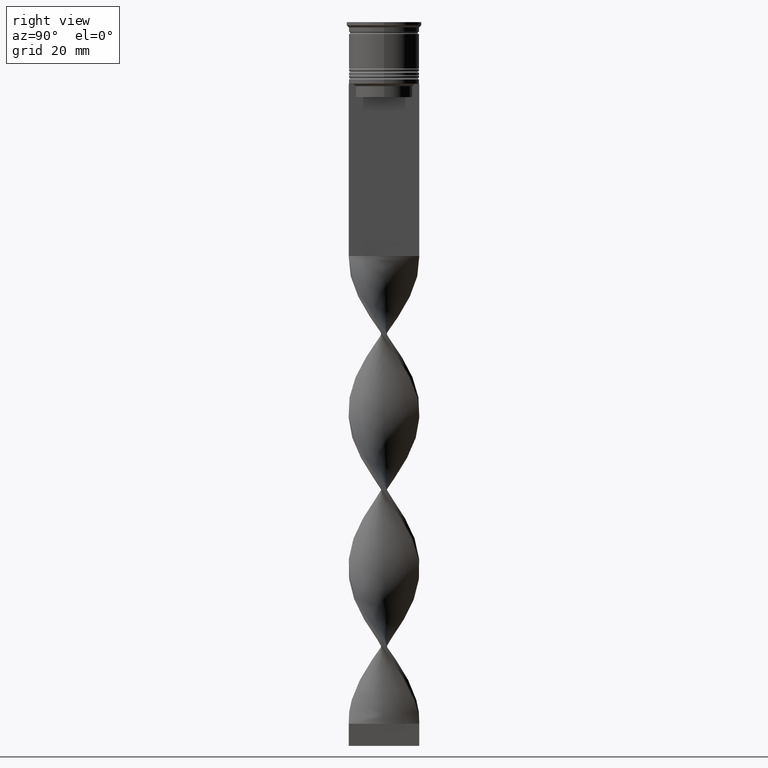
[diagram: clean part render]
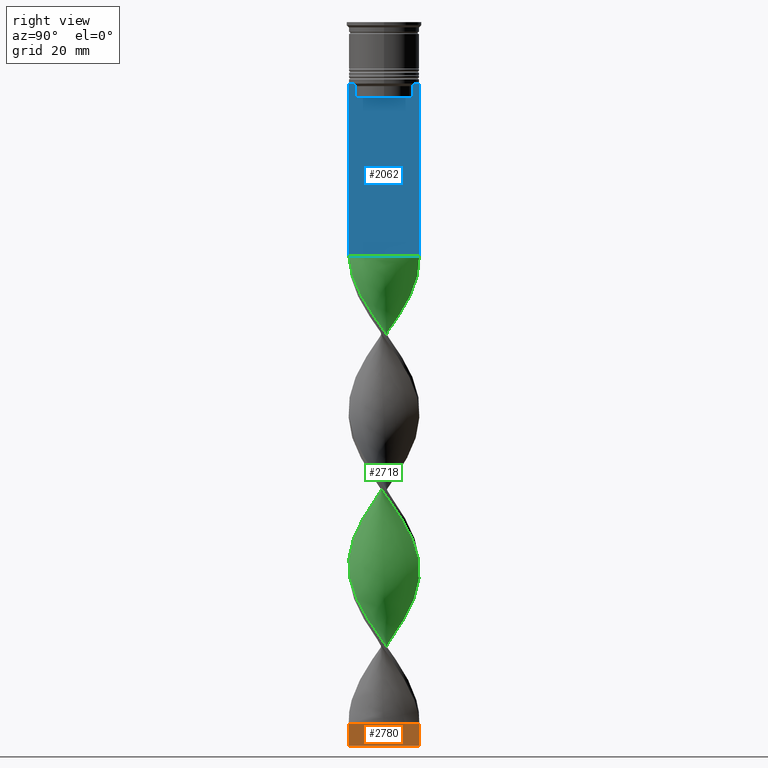
[diagram: same view with three faces highlighted in distinct colors, each labeled with its STEP entity id]
A machine part, right view with three faces highlighted in distinct colors.
Their STEP definitions:

[orange] entity #2780 — the highlighted planar face has unit normal (-1, 0, 0).
#74 = VERTEX_POINT ( 'NONE', #1601 ) ;
#82 = PLANE ( 'NONE',  #1671 ) ;
#130 = ORIENTED_EDGE ( 'NONE', *, *, #1564, .T. ) ;
#194 = ORIENTED_EDGE ( 'NONE', *, *, #2285, .F. ) ;
#341 = ORIENTED_EDGE ( 'NONE', *, *, #2772, .F. ) ;
#364 = DIRECTION ( 'NONE',  ( -1.219727444046192488E-16, -1.000000000000000000, 0.000000000000000000 ) ) ;
#442 = VECTOR ( 'NONE', #2207, 1000.000000000000000 ) ;
#530 = EDGE_LOOP ( 'NONE', ( #1294, #194, #341, #130 ) ) ;
#594 = CARTESIAN_POINT ( 'NONE',  ( 0.4999999999999989453, -7.999999999999996447, -159.0000000000000000 ) ) ;
#726 = CARTESIAN_POINT ( 'NONE',  ( 0.4999999999999989453, -7.999999999999996447, -164.0000000000000000 ) ) ;
#1136 = LINE ( 'NONE', #1792, #2102 ) ;
#1210 = DIRECTION ( 'NONE',  ( -0.000000000000000000, -0.000000000000000000, 1.000000000000000000 ) ) ;
#1294 = ORIENTED_EDGE ( 'NONE', *, *, #3316, .T. ) ;
#1388 = LINE ( 'NONE', #3693, #442 ) ;
#1389 = CARTESIAN_POINT ( 'NONE',  ( 0.5000000000000008882, 8.000000000000003553, -159.0000000000000000 ) ) ;
#1510 = CARTESIAN_POINT ( 'NONE',  ( 0.5000000000000008882, 8.000000000000003553, -164.0000000000000000 ) ) ;
#1540 = B_SPLINE_CURVE_WITH_KNOTS ( 'NONE', 3,
 ( #1389, #3161, #3181, #594 ),
 .UNSPECIFIED., .F., .F.,
 ( 4, 4 ),
 ( 0.000000000000000000, 1.000000000000000000 ),
 .UNSPECIFIED. ) ;
#1564 = EDGE_CURVE ( 'NONE', #2221, #74, #1388, .T. ) ;
#1601 = CARTESIAN_POINT ( 'NONE',  ( 0.5000000000000008882, 8.000000000000003553, -159.0000000000000000 ) ) ;
#1637 = VERTEX_POINT ( 'NONE', #3394 ) ;
#1671 = AXIS2_PLACEMENT_3D ( 'NONE', #3606, #1874, #364 ) ;
#1792 = CARTESIAN_POINT ( 'NONE',  ( 0.4999999999999989453, -7.999999999999996447, -164.0000000000000000 ) ) ;
#1874 = DIRECTION ( 'NONE',  ( -1.000000000000000000, 1.219727444046192488E-16, 0.000000000000000000 ) ) ;
#2102 = VECTOR ( 'NONE', #1210, 1000.000000000000000 ) ;
#2207 = DIRECTION ( 'NONE',  ( -0.000000000000000000, -0.000000000000000000, 1.000000000000000000 ) ) ;
#2221 = VERTEX_POINT ( 'NONE', #3726 ) ;
#2285 = EDGE_CURVE ( 'NONE', #3018, #1637, #1136, .T. ) ;
#2772 = EDGE_CURVE ( 'NONE', #2221, #3018, #3304, .T. ) ;
#2780 = ADVANCED_FACE ( 'NONE', ( #2999 ), #82, .F. ) ;
#2999 = FACE_OUTER_BOUND ( 'NONE', #530, .T. ) ;
#3018 = VERTEX_POINT ( 'NONE', #726 ) ;
#3161 = CARTESIAN_POINT ( 'NONE',  ( 0.5000000000000002220, 2.666666666666670515, -159.0000000000000000 ) ) ;
#3181 = CARTESIAN_POINT ( 'NONE',  ( 0.4999999999999995559, -2.666666666666663410, -159.0000000000000000 ) ) ;
#3283 = DIRECTION ( 'NONE',  ( -1.219727444046192488E-16, -1.000000000000000000, 0.000000000000000000 ) ) ;
#3304 = LINE ( 'NONE', #1510, #3323 ) ;
#3316 = EDGE_CURVE ( 'NONE', #74, #1637, #1540, .T. ) ;
#3323 = VECTOR ( 'NONE', #3283, 1000.000000000000000 ) ;
#3394 = CARTESIAN_POINT ( 'NONE',  ( 0.4999999999999989453, -7.999999999999996447, -159.0000000000000000 ) ) ;
#3606 = CARTESIAN_POINT ( 'NONE',  ( 0.5000000000000008882, 8.000000000000003553, -164.0000000000000000 ) ) ;
#3693 = CARTESIAN_POINT ( 'NONE',  ( 0.5000000000000008882, 8.000000000000003553, -164.0000000000000000 ) ) ;
#3726 = CARTESIAN_POINT ( 'NONE',  ( 0.5000000000000008882, 8.000000000000003553, -164.0000000000000000 ) ) ;

[blue] entity #2062 — the highlighted planar face has unit normal (-1, 0, 0).
#8 = CARTESIAN_POINT ( 'NONE',  ( 0.5000000000000001110, -6.881860213634098500, -14.00000000000000178 ) ) ;
#18 = CARTESIAN_POINT ( 'NONE',  ( 0.5000000000000001110, 6.881860213634098500, -14.00000000000000178 ) ) ;
#34 = CARTESIAN_POINT ( 'NONE',  ( 0.5000000000000001110, 6.380438856379708312, -14.50000000000000000 ) ) ;
#38 = EDGE_CURVE ( 'NONE', #3427, #2459, #3504, .T. ) ;
#67 = EDGE_CURVE ( 'NONE', #2589, #3427, #1018, .T. ) ;
#149 = VECTOR ( 'NONE', #1257, 1000.000000000000000 ) ;
#189 = VECTOR ( 'NONE', #1235, 1000.000000000000000 ) ;
#227 = VERTEX_POINT ( 'NONE', #951 ) ;
#328 = VECTOR ( 'NONE', #2344, 1000.000000000000000 ) ;
#332 = VECTOR ( 'NONE', #2652, 1000.000000000000000 ) ;
#335 = VERTEX_POINT ( 'NONE', #2974 ) ;
#354 = LINE ( 'NONE', #2681, #149 ) ;
#412 = CARTESIAN_POINT ( 'NONE',  ( 0.5000000000000001110, -8.000000000000003553, 2.031219541881394530 ) ) ;
#416 = CARTESIAN_POINT ( 'NONE',  ( 0.5000000000000001110, 6.380438856379708312, -14.50000000000000000 ) ) ;
#433 = DIRECTION ( 'NONE',  ( 0.000000000000000000, 0.000000000000000000, -1.000000000000000000 ) ) ;
#456 = B_SPLINE_CURVE_WITH_KNOTS ( 'NONE', 3,
 ( #829, #2335, #3226, #8 ),
 .UNSPECIFIED., .F., .F.,
 ( 4, 4 ),
 ( 0.02996184199614751464, 0.03067452609193705923 ),
 .UNSPECIFIED. ) ;
#501 = VERTEX_POINT ( 'NONE', #3418 ) ;
#566 = CARTESIAN_POINT ( 'NONE',  ( 0.5000000000000001110, 6.399999999999999467, -17.00000000000000000 ) ) ;
#728 = CARTESIAN_POINT ( 'NONE',  ( 0.5000000000000001110, -8.000000000000003553, 2.031219541881394530 ) ) ;
#729 = ORIENTED_EDGE ( 'NONE', *, *, #1634, .T. ) ;
#780 = VERTEX_POINT ( 'NONE', #1206 ) ;
#829 = CARTESIAN_POINT ( 'NONE',  ( 0.5000000000000001110, -6.380438856379708312, -14.50000000000000000 ) ) ;
#839 = LINE ( 'NONE', #1761, #2442 ) ;
#895 = EDGE_CURVE ( 'NONE', #2841, #335, #354, .T. ) ;
#951 = CARTESIAN_POINT ( 'NONE',  ( 0.5000000000000001110, -6.380438856379708312, -17.00000000000000000 ) ) ;
#955 = CARTESIAN_POINT ( 'NONE',  ( 0.5000000000000001110, 7.999999999999996447, 2.031219541881394530 ) ) ;
#975 = CARTESIAN_POINT ( 'NONE',  ( 0.5000000000000001110, -8.000000000000003553, -14.00000000000000178 ) ) ;
#979 = ORIENTED_EDGE ( 'NONE', *, *, #2970, .F. ) ;
#1006 = DIRECTION ( 'NONE',  ( 0.000000000000000000, -1.000000000000000000, 0.000000000000000000 ) ) ;
#1016 = LINE ( 'NONE', #975, #3426 ) ;
#1018 = LINE ( 'NONE', #728, #1424 ) ;
#1026 = DIRECTION ( 'NONE',  ( -1.000000000000000000, 0.000000000000000000, 0.000000000000000000 ) ) ;
#1051 = VERTEX_POINT ( 'NONE', #2056 ) ;
#1131 = CARTESIAN_POINT ( 'NONE',  ( 0.5000000000000001110, -8.000000000000003553, -14.00000000000000178 ) ) ;
#1206 = CARTESIAN_POINT ( 'NONE',  ( 0.5000000000000001110, 6.380438856379708312, -17.00000000000000000 ) ) ;
#1235 = DIRECTION ( 'NONE',  ( 0.000000000000000000, 0.000000000000000000, -1.000000000000000000 ) ) ;
#1237 = ORIENTED_EDGE ( 'NONE', *, *, #2520, .T. ) ;
#1257 = DIRECTION ( 'NONE',  ( 0.000000000000000000, -1.000000000000000000, 0.000000000000000000 ) ) ;
#1407 = DIRECTION ( 'NONE',  ( 0.000000000000000000, -1.000000000000000000, 0.000000000000000000 ) ) ;
#1424 = VECTOR ( 'NONE', #433, 1000.000000000000000 ) ;
#1453 = CARTESIAN_POINT ( 'NONE',  ( 0.5000000000000001110, -8.000000000000003553, -53.00000000000000000 ) ) ;
#1470 = EDGE_CURVE ( 'NONE', #335, #2589, #1016, .T. ) ;
#1490 = LINE ( 'NONE', #955, #332 ) ;
#1500 = CARTESIAN_POINT ( 'NONE',  ( 0.5000000000000001110, 7.999999999999996447, -53.00000000000000000 ) ) ;
#1529 = CARTESIAN_POINT ( 'NONE',  ( 0.5000000000000001110, -6.881860213634098500, -14.00000000000000178 ) ) ;
#1634 = EDGE_CURVE ( 'NONE', #1051, #1897, #1701, .T. ) ;
#1652 = VERTEX_POINT ( 'NONE', #2288 ) ;
#1695 = ORIENTED_EDGE ( 'NONE', *, *, #2632, .T. ) ;
#1699 = ORIENTED_EDGE ( 'NONE', *, *, #3391, .T. ) ;
#1701 = LINE ( 'NONE', #3455, #3611 ) ;
#1761 = CARTESIAN_POINT ( 'NONE',  ( 0.5000000000000001110, -6.380438856379708312, 0.000000000000000000 ) ) ;
#1833 = ORIENTED_EDGE ( 'NONE', *, *, #38, .T. ) ;
#1897 = VERTEX_POINT ( 'NONE', #3277 ) ;
#1970 = VECTOR ( 'NONE', #2696, 1000.000000000000000 ) ;
#2051 = ORIENTED_EDGE ( 'NONE', *, *, #3434, .T. ) ;
#2056 = CARTESIAN_POINT ( 'NONE',  ( 0.5000000000000001110, 7.884161337770806632, -14.00000000000000178 ) ) ;
#2062 = ADVANCED_FACE ( 'NONE', ( #3031 ), #2455, .F. ) ;
#2101 = CARTESIAN_POINT ( 'NONE',  ( 0.5000000000000001110, 6.380438856379708312, 0.000000000000000000 ) ) ;
#2276 = VECTOR ( 'NONE', #1006, 1000.000000000000000 ) ;
#2288 = CARTESIAN_POINT ( 'NONE',  ( 0.5000000000000001110, -6.380438856379708312, -14.50000000000000000 ) ) ;
#2333 = EDGE_CURVE ( 'NONE', #780, #227, #2359, .T. ) ;
#2335 = CARTESIAN_POINT ( 'NONE',  ( 0.5000000000000001110, -6.547597841511247019, -14.33335192438652150 ) ) ;
#2344 = DIRECTION ( 'NONE',  ( 0.000000000000000000, -1.000000000000000000, 0.000000000000000000 ) ) ;
#2359 = LINE ( 'NONE', #566, #328 ) ;
#2429 = ORIENTED_EDGE ( 'NONE', *, *, #3270, .T. ) ;
#2441 = CARTESIAN_POINT ( 'NONE',  ( 0.5000000000000001110, -8.000000000000003553, -53.00000000000000000 ) ) ;
#2442 = VECTOR ( 'NONE', #3488, 1000.000000000000000 ) ;
#2455 = PLANE ( 'NONE',  #2761 ) ;
#2459 = VERTEX_POINT ( 'NONE', #1500 ) ;
#2520 = EDGE_CURVE ( 'NONE', #501, #1051, #2699, .T. ) ;
#2589 = VERTEX_POINT ( 'NONE', #1131 ) ;
#2628 = CARTESIAN_POINT ( 'NONE',  ( 0.5000000000000001110, 6.714736947114692711, -14.16668390704818847 ) ) ;
#2632 = EDGE_CURVE ( 'NONE', #1652, #2841, #456, .T. ) ;
#2652 = DIRECTION ( 'NONE',  ( 0.000000000000000000, 0.000000000000000000, -1.000000000000000000 ) ) ;
#2681 = CARTESIAN_POINT ( 'NONE',  ( 0.5000000000000001110, -8.000000000000003553, -14.00000000000000178 ) ) ;
#2696 = DIRECTION ( 'NONE',  ( 0.000000000000000000, 1.000000000000000000, 0.000000000000000000 ) ) ;
#2699 = LINE ( 'NONE', #3567, #2276 ) ;
#2741 = DIRECTION ( 'NONE',  ( 0.000000000000000000, 0.000000000000000000, 1.000000000000000000 ) ) ;
#2761 = AXIS2_PLACEMENT_3D ( 'NONE', #412, #1026, #2741 ) ;
#2766 = DIRECTION ( 'NONE',  ( 0.000000000000000000, -1.000000000000000000, 0.000000000000000000 ) ) ;
#2841 = VERTEX_POINT ( 'NONE', #1529 ) ;
#2854 = EDGE_LOOP ( 'NONE', ( #729, #1699, #2051, #3154, #2429, #1695, #3343, #3139, #3002, #1833, #979, #1237 ) ) ;
#2970 = EDGE_CURVE ( 'NONE', #501, #2459, #1490, .T. ) ;
#2974 = CARTESIAN_POINT ( 'NONE',  ( 0.5000000000000001110, -7.884161337770806632, -14.00000000000000178 ) ) ;
#3002 = ORIENTED_EDGE ( 'NONE', *, *, #67, .T. ) ;
#3031 = FACE_OUTER_BOUND ( 'NONE', #2854, .T. ) ;
#3084 = VERTEX_POINT ( 'NONE', #416 ) ;
#3139 = ORIENTED_EDGE ( 'NONE', *, *, #1470, .T. ) ;
#3154 = ORIENTED_EDGE ( 'NONE', *, *, #2333, .T. ) ;
#3226 = CARTESIAN_POINT ( 'NONE',  ( 0.5000000000000001110, -6.714736947305993908, -14.16668390685738821 ) ) ;
#3270 = EDGE_CURVE ( 'NONE', #227, #1652, #839, .T. ) ;
#3277 = CARTESIAN_POINT ( 'NONE',  ( 0.5000000000000001110, 6.881860213634098500, -14.00000000000000178 ) ) ;
#3343 = ORIENTED_EDGE ( 'NONE', *, *, #895, .T. ) ;
#3391 = EDGE_CURVE ( 'NONE', #1897, #3084, #3502, .T. ) ;
#3418 = CARTESIAN_POINT ( 'NONE',  ( 0.5000000000000001110, 7.999999999999996447, -14.00000000000000178 ) ) ;
#3426 = VECTOR ( 'NONE', #2766, 1000.000000000000000 ) ;
#3427 = VERTEX_POINT ( 'NONE', #2441 ) ;
#3434 = EDGE_CURVE ( 'NONE', #3084, #780, #3587, .T. ) ;
#3455 = CARTESIAN_POINT ( 'NONE',  ( 0.5000000000000001110, -8.000000000000003553, -14.00000000000000178 ) ) ;
#3488 = DIRECTION ( 'NONE',  ( -0.000000000000000000, -0.000000000000000000, 1.000000000000000000 ) ) ;
#3502 = B_SPLINE_CURVE_WITH_KNOTS ( 'NONE', 3,
 ( #18, #2628, #3712, #34 ),
 .UNSPECIFIED., .F., .F.,
 ( 4, 4 ),
 ( 0.01172465562756038263, 0.01243276816391822651 ),
 .UNSPECIFIED. ) ;
#3504 = LINE ( 'NONE', #1453, #1970 ) ;
#3567 = CARTESIAN_POINT ( 'NONE',  ( 0.5000000000000001110, -8.000000000000003553, -14.00000000000000178 ) ) ;
#3587 = LINE ( 'NONE', #2101, #189 ) ;
#3611 = VECTOR ( 'NONE', #1407, 1000.000000000000000 ) ;
#3712 = CARTESIAN_POINT ( 'NONE',  ( 0.5000000000000001110, 6.547597841304911626, -14.33335192459222718 ) ) ;

[green] entity #2718 — the highlighted face is a freeform B-spline surface patch.
#20 = CARTESIAN_POINT ( 'NONE',  ( -6.803297758105512294, 4.321446859207499713, -98.93333333333332291 ) ) ;
#38 = EDGE_CURVE ( 'NONE', #3427, #2459, #3504, .T. ) ;
#65 = CARTESIAN_POINT ( 'NONE',  ( -7.144131640230917846, 3.731105258425341020, -65.95555555555556282 ) ) ;
#71 = CARTESIAN_POINT ( 'NONE',  ( 1.174219726175175671, 7.929136651279327097, -156.6444444444444457 ) ) ;
#88 = CARTESIAN_POINT ( 'NONE',  ( 1.174219726175175671, 7.929136651279327097, -85.97777777777777430 ) ) ;
#110 = CARTESIAN_POINT ( 'NONE',  ( -5.106790515527260155, 6.178243328853345595, -95.40000000000000568 ) ) ;
#111 = CARTESIAN_POINT ( 'NONE',  ( 7.763755626116584985, -2.164223167868973619, -103.6444444444444457 ) ) ;
#125 = CARTESIAN_POINT ( 'NONE',  ( 5.106790515527261043, -6.178243328853345595, -60.06666666666666288 ) ) ;
#126 = CARTESIAN_POINT ( 'NONE',  ( -7.144131640230917846, 3.731105258425341020, -65.95555555555556282 ) ) ;
#137 = CARTESIAN_POINT ( 'NONE',  ( -8.044066236508134793, -0.5027541397817568702, -106.0000000000000000 ) ) ;
#138 = CARTESIAN_POINT ( 'NONE',  ( -8.008439394580010529, -0.3389667584570894565, -71.84444444444444855 ) ) ;
#155 = CARTESIAN_POINT ( 'NONE',  ( -6.803297758105507853, -4.321446859207493496, -148.4000000000000057 ) ) ;
#156 = CARTESIAN_POINT ( 'NONE',  ( 1.174219726175168788, -7.929136651279321768, -90.68888888888888289 ) ) ;
#171 = CARTESIAN_POINT ( 'NONE',  ( -5.610593300639721726, 5.724617263609561135, -133.0888888888889028 ) ) ;
#174 = CARTESIAN_POINT ( 'NONE',  ( -7.903910931312356780, 1.333488653825365855, -140.1555555555555657 ) ) ;
#185 = CARTESIAN_POINT ( 'NONE',  ( 5.008911780959355298, 6.314314381860029357, -150.7555555555555600 ) ) ;
#186 = CARTESIAN_POINT ( 'NONE',  ( -4.297773521152309151, 6.766028581145814513, -130.7333333333333485 ) ) ;
#190 = CARTESIAN_POINT ( 'NONE',  ( -5.106790515527258378, -6.178243328853339378, -81.26666666666666572 ) ) ;
#208 = CARTESIAN_POINT ( 'NONE',  ( 8.008439394580010529, 0.3389667584570867365, -107.1777777777777771 ) ) ;
#223 = CARTESIAN_POINT ( 'NONE',  ( -7.762960627548699755, -1.996607696852000569, -144.8666666666666742 ) ) ;
#228 = CARTESIAN_POINT ( 'NONE',  ( -7.453943633173751415, 2.947664213147155543, -67.13333333333333997 ) ) ;
#237 = CARTESIAN_POINT ( 'NONE',  ( 2.963900771692544289, -7.495002038555971247, -127.2000000000000171 ) ) ;
#242 = CARTESIAN_POINT ( 'NONE',  ( -2.007605570224930691, 7.805721184925808132, -127.2000000000000171 ) ) ;
#283 = CARTESIAN_POINT ( 'NONE',  ( 3.586635261345274106, 7.217742780431604999, -82.44444444444444287 ) ) ;
#309 = ORIENTED_EDGE ( 'NONE', *, *, #1014, .T. ) ;
#348 = CARTESIAN_POINT ( 'NONE',  ( -6.678203230275506108, 4.433012701892218743, -64.77777777777778567 ) ) ;
#352 = CARTESIAN_POINT ( 'NONE',  ( 7.763755626116592090, 2.164223167868970066, -73.02222222222219727 ) ) ;
#357 = CARTESIAN_POINT ( 'NONE',  ( -0.4999999999999991673, 8.000000000000003553, -88.33333333333332860 ) ) ;
#373 = CARTESIAN_POINT ( 'NONE',  ( -7.178203230275511437, 3.566987298107786142, -100.1111111111111143 ) ) ;
#374 = CARTESIAN_POINT ( 'NONE',  ( -6.803297758105507853, -4.321446859207493496, -77.73333333333333428 ) ) ;
#393 = CARTESIAN_POINT ( 'NONE',  ( -2.152367326908976253, 7.721224960461570141, -90.68888888888888289 ) ) ;
#407 = CARTESIAN_POINT ( 'NONE',  ( -2.963900771692543401, -7.495002038555964141, -155.4666666666666686 ) ) ;
#408 = CARTESIAN_POINT ( 'NONE',  ( -7.553108702445506140, -2.812527737008062356, -75.37777777777777999 ) ) ;
#409 = CARTESIAN_POINT ( 'NONE',  ( -0.4999999999999991673, 8.000000000000003553, -159.0000000000000000 ) ) ;
#411 = CARTESIAN_POINT ( 'NONE',  ( 0.3408338821254142115, 8.052552117632842510, -157.8222222222221944 ) ) ;
#423 = CARTESIAN_POINT ( 'NONE',  ( 7.453943633173759409, 2.947664213147156431, -74.20000000000000284 ) ) ;
#424 = CARTESIAN_POINT ( 'NONE',  ( 5.610593300639719949, -5.724617263609562912, -97.75555555555555998 ) ) ;
#427 = CARTESIAN_POINT ( 'NONE',  ( 7.553108702445512357, -2.812527737008067241, -136.6222222222222342 ) ) ;
#441 = CARTESIAN_POINT ( 'NONE',  ( 4.457430975162862907, -6.714988640649848683, -129.5555555555555429 ) ) ;
#444 = CARTESIAN_POINT ( 'NONE',  ( 2.963900771692544289, 7.495002038555965029, -120.1333333333333400 ) ) ;
#449 = CARTESIAN_POINT ( 'NONE',  ( -7.144131640230917846, 3.731105258425341020, -136.6222222222222342 ) ) ;
#459 = EDGE_CURVE ( 'NONE', #3183, #947, #3295, .T. ) ;
#462 = CARTESIAN_POINT ( 'NONE',  ( 6.279723906998584404, -4.981472438132170666, -133.0888888888889028 ) ) ;
#463 = CARTESIAN_POINT ( 'NONE',  ( 8.044066236508127687, -0.5027541397817598678, -106.0000000000000000 ) ) ;
#467 = CARTESIAN_POINT ( 'NONE',  ( 0.3408338821254078277, -8.052552117632837181, -89.51111111111111995 ) ) ;
#480 = CARTESIAN_POINT ( 'NONE',  ( 0.3408338821254142115, 8.052552117632842510, -157.8222222222221660 ) ) ;
#481 = CARTESIAN_POINT ( 'NONE',  ( 6.279723906998583516, 4.981472438132163560, -114.2444444444444542 ) ) ;
#486 = CARTESIAN_POINT ( 'NONE',  ( 7.763755626116584097, -2.164223167868973619, -103.6444444444444457 ) ) ;
#497 = CARTESIAN_POINT ( 'NONE',  ( -3.710665873427700934, 7.104995339602911741, -93.04444444444443718 ) ) ;
#498 = CARTESIAN_POINT ( 'NONE',  ( 7.553108702445513245, -2.812527737008067685, -136.6222222222222342 ) ) ;
#499 = CARTESIAN_POINT ( 'NONE',  ( -4.457430975162862019, -6.714988640649840690, -153.1111111111111143 ) ) ;
#502 = ORIENTED_EDGE ( 'NONE', *, *, #2540, .F. ) ;
#506 = CARTESIAN_POINT ( 'NONE',  ( 6.803297758105507853, 4.321446859207492608, -113.0666666666666487 ) ) ;
#523 = CARTESIAN_POINT ( 'NONE',  ( 1.174219726175175671, 7.929136651279327097, -156.6444444444444457 ) ) ;
#524 = CARTESIAN_POINT ( 'NONE',  ( -2.963900771692543401, -7.495002038555965029, -155.4666666666666686 ) ) ;
#528 = CARTESIAN_POINT ( 'NONE',  ( 0.5000000000000001110, 7.999999999999996447, -123.6666666666666714 ) ) ;
#589 = CARTESIAN_POINT ( 'NONE',  ( 2.152367326908978473, -7.721224960461570141, -55.35555555555555429 ) ) ;
#597 = CARTESIAN_POINT ( 'NONE',  ( 8.008439394580017634, -0.3389667584570930092, -69.48888888888889426 ) ) ;
#640 = CARTESIAN_POINT ( 'NONE',  ( 0.5000000000000001110, 7.999999999999996447, -53.00000000000000000 ) ) ;
#645 = CARTESIAN_POINT ( 'NONE',  ( -7.453943633173751415, 2.947664213147155543, -67.13333333333333997 ) ) ;
#660 = CARTESIAN_POINT ( 'NONE',  ( 7.553108702445513245, -2.812527737008067685, -65.95555555555556282 ) ) ;
#661 = CARTESIAN_POINT ( 'NONE',  ( -0.5000000000000011102, -7.999999999999996447, -88.33333333333332860 ) ) ;
#663 = CARTESIAN_POINT ( 'NONE',  ( 3.710665873427703154, -7.104995339602909965, -57.71111111111110858 ) ) ;
#679 = CARTESIAN_POINT ( 'NONE',  ( 6.279723906998584404, -4.981472438132170666, -62.42222222222221717 ) ) ;
#680 = CARTESIAN_POINT ( 'NONE',  ( -4.457430975162862019, -6.714988640649840690, -82.44444444444444287 ) ) ;
#690 = CARTESIAN_POINT ( 'NONE',  ( 4.297773521152314480, 6.766028581145818066, -81.26666666666666572 ) ) ;
#702 = CARTESIAN_POINT ( 'NONE',  ( 6.212274820320101476, 5.134920145359098242, -77.73333333333333428 ) ) ;
#716 = CARTESIAN_POINT ( 'NONE',  ( -2.152367326908979805, -7.721224960461560372, -156.6444444444444457 ) ) ;
#717 = CARTESIAN_POINT ( 'NONE',  ( 3.586635261345266557, -7.217742780431602334, -94.22222222222221433 ) ) ;
#723 = CARTESIAN_POINT ( 'NONE',  ( -7.553108702445509692, 2.812527737008071682, -101.2888888888888914 ) ) ;
#734 = CARTESIAN_POINT ( 'NONE',  ( 8.044066236508134793, 0.5027541397817577584, -70.66666666666667140 ) ) ;
#735 = CARTESIAN_POINT ( 'NONE',  ( -1.174219726175170786, 7.929136651279321768, -126.0222222222222257 ) ) ;
#740 = CARTESIAN_POINT ( 'NONE',  ( 1.340833882125418208, 7.947447882367156602, -122.4888888888888800 ) ) ;
#750 = CARTESIAN_POINT ( 'NONE',  ( 1.340833882125412213, -7.947447882367162819, -124.8444444444444343 ) ) ;
#760 = CARTESIAN_POINT ( 'NONE',  ( -1.174219726175170786, 7.929136651279321768, -126.0222222222222257 ) ) ;
#771 = CARTESIAN_POINT ( 'NONE',  ( -7.144131640230925839, -3.731105258425339244, -110.7111111111110944 ) ) ;
#772 = CARTESIAN_POINT ( 'NONE',  ( 0.5000000000000001110, 7.999999999999996447, -123.6666666666666714 ) ) ;
#776 = CARTESIAN_POINT ( 'NONE',  ( -8.008439394580010529, -0.3389667584570894565, -71.84444444444444855 ) ) ;
#787 = CARTESIAN_POINT ( 'NONE',  ( 5.756150055891659179, -5.641498017056845171, -131.9111111111111256 ) ) ;
#793 = CARTESIAN_POINT ( 'NONE',  ( 4.297773521152308263, -6.766028581145814513, -95.40000000000000568 ) ) ;
#803 = CARTESIAN_POINT ( 'NONE',  ( 5.008911780959356186, 6.314314381860030245, -150.7555555555555600 ) ) ;
#806 = CARTESIAN_POINT ( 'NONE',  ( 8.044066236508134793, 0.5027541397817577584, -141.3333333333333428 ) ) ;
#807 = CARTESIAN_POINT ( 'NONE',  ( 5.106790515527259267, 6.178243328853339378, -116.6000000000000085 ) ) ;
#814 = CARTESIAN_POINT ( 'NONE',  ( 2.963900771692544289, 7.495002038555964141, -120.1333333333333400 ) ) ;
#832 = ORIENTED_EDGE ( 'NONE', *, *, #38, .F. ) ;
#855 = CARTESIAN_POINT ( 'NONE',  ( 1.340833882125412213, -7.947447882367163707, -54.17777777777777715 ) ) ;
#864 = CARTESIAN_POINT ( 'NONE',  ( 6.803297758105513182, -4.321446859207498825, -63.60000000000000142 ) ) ;
#918 = CARTESIAN_POINT ( 'NONE',  ( -3.586635261345267889, 7.217742780431601446, -58.88888888888889284 ) ) ;
#945 = CARTESIAN_POINT ( 'NONE',  ( -6.803297758105511406, 4.321446859207499713, -98.93333333333332291 ) ) ;
#946 = CARTESIAN_POINT ( 'NONE',  ( -0.3408338821254111584, 8.052552117632835404, -54.17777777777777715 ) ) ;
#947 = VERTEX_POINT ( 'NONE', #409 ) ;
#959 = CARTESIAN_POINT ( 'NONE',  ( 5.106790515527261043, -6.178243328853345595, -130.7333333333333485 ) ) ;
#966 = CARTESIAN_POINT ( 'NONE',  ( -4.457430975162861131, 6.714988640649850460, -94.22222222222221433 ) ) ;
#985 = CARTESIAN_POINT ( 'NONE',  ( -5.756150055891655626, -5.641498017056837178, -150.7555555555555600 ) ) ;
#986 = CARTESIAN_POINT ( 'NONE',  ( -7.762960627548699755, -1.996607696852000569, -74.20000000000000284 ) ) ;
#1005 = CARTESIAN_POINT ( 'NONE',  ( -7.453943633173759409, -2.947664213147155543, -109.5333333333333456 ) ) ;
#1014 = EDGE_CURVE ( 'NONE', #3427, #947, #3331, .T. ) ;
#1022 = CARTESIAN_POINT ( 'NONE',  ( -8.008439394580010529, -0.3389667584570894565, -142.5111111111111200 ) ) ;
#1023 = CARTESIAN_POINT ( 'NONE',  ( -8.044066236508127687, 0.5027541397817588686, -141.3333333333333428 ) ) ;
#1025 = CARTESIAN_POINT ( 'NONE',  ( -4.297773521152309151, 6.766028581145814513, -130.7333333333333485 ) ) ;
#1034 = CARTESIAN_POINT ( 'NONE',  ( 7.763755626116592090, 2.164223167868970066, -143.6888888888888971 ) ) ;
#1035 = CARTESIAN_POINT ( 'NONE',  ( -7.178203230275506996, -3.566987298107776816, -147.2222222222222285 ) ) ;
#1037 = CARTESIAN_POINT ( 'NONE',  ( -7.453943633173759409, -2.947664213147155543, -109.5333333333333456 ) ) ;
#1038 = CARTESIAN_POINT ( 'NONE',  ( -7.178203230275506996, -3.566987298107776816, -76.55555555555555713 ) ) ;
#1047 = CARTESIAN_POINT ( 'NONE',  ( 5.610593300639729719, 5.724617263609562912, -149.5777777777777828 ) ) ;
#1052 = CARTESIAN_POINT ( 'NONE',  ( -6.678203230275515878, -4.433012701892216079, -111.8888888888888999 ) ) ;
#1055 = CARTESIAN_POINT ( 'NONE',  ( 7.762960627548699755, 1.996607696851999680, -109.5333333333333456 ) ) ;
#1059 = CARTESIAN_POINT ( 'NONE',  ( 3.586635261345266112, -7.217742780431602334, -94.22222222222221433 ) ) ;
#1071 = CARTESIAN_POINT ( 'NONE',  ( -6.803297758105507853, -4.321446859207493496, -77.73333333333333428 ) ) ;
#1079 = CARTESIAN_POINT ( 'NONE',  ( 5.106790515527261043, -6.178243328853345595, -60.06666666666666288 ) ) ;
#1080 = CARTESIAN_POINT ( 'NONE',  ( 3.586635261345274106, 7.217742780431604999, -153.1111111111111143 ) ) ;
#1082 = CARTESIAN_POINT ( 'NONE',  ( 6.678203230275513214, 4.433012701892219631, -76.55555555555555713 ) ) ;
#1088 = CARTESIAN_POINT ( 'NONE',  ( 2.152367326908978473, -7.721224960461570141, -126.0222222222222257 ) ) ;
#1089 = CARTESIAN_POINT ( 'NONE',  ( 7.972812552651892481, 1.180687656695933230, -108.3555555555555543 ) ) ;
#1096 = CARTESIAN_POINT ( 'NONE',  ( 3.710665873427706707, 7.104995339602901083, -118.9555555555555628 ) ) ;
#1148 = CARTESIAN_POINT ( 'NONE',  ( 2.963900771692544289, -7.495002038555971247, -127.2000000000000028 ) ) ;
#1204 = CARTESIAN_POINT ( 'NONE',  ( -0.3408338821254111584, 8.052552117632835404, -54.17777777777777715 ) ) ;
#1226 =( BOUNDED_CURVE ( )  B_SPLINE_CURVE ( 2, ( #2132, #946, #2151, #2678, #2116, #3631, #3292, #2451, #1231, #2723, #1881, #126, #645, #3044, #3028, #1276, #138, #3584, #986, #408, #2097, #374, #1826, #1574, #1256, #680, #1539, #2173, #3273, #2738, #661, #2754, #156, #3337, #3254, #717, #2419, #2972, #424, #2471, #1313, #1841, #2988, #111, #2774, #463, #3420, #1089, #1055, #3060, #2220, #1378, #481, #2201, #807, #1360, #3112, #444, #1397, #1338, #772, #1648, #735, #3402, #1976, #3663, #186, #3366, #171, #3387, #1326, #2486, #1896, #2804, #1631, #1023, #1612, #3644, #223, #3133, #1035, #1954, #2788, #2500, #1936, #499, #3098, #524, #2524, #2542, #2235 ),
 .UNSPECIFIED., .F., .T. ) 
 B_SPLINE_CURVE_WITH_KNOTS ( ( 3, 2, 2, 2, 2, 2, 2, 2, 2, 2, 2, 2, 2, 2, 2, 2, 2, 2, 2, 2, 2, 2, 2, 2, 2, 2, 2, 2, 2, 2, 2, 2, 2, 2, 2, 2, 2, 2, 2, 2, 2, 2, 2, 2, 2, 3 ),
 ( 0.000000000000000000, 0.01666666666666666644, 0.03333333333333333287, 0.05000000000000000971, 0.06666666666666666574, 0.08333333333333332871, 0.1000000000000000194, 0.1166666666666666546, 0.1333333333333333315, 0.1499999999999999944, 0.1666666666666666574, 0.1833333333333333204, 0.2000000000000000389, 0.2166666666666666741, 0.2333333333333333093, 0.2500000000000000000, 0.2666666666666666630, 0.2833333333333333259, 0.2999999999999999889, 0.3166666666666666519, 0.3333333333333333148, 0.3499999999999999223, 0.3666666666666666408, 0.3833333333333333592, 0.4000000000000000777, 0.4166666666666666852, 0.4333333333333333481, 0.4500000000000000111, 0.4666666666666666186, 0.4833333333333333370, 0.5000000000000000000, 0.5166666666666667185, 0.5333333333333333259, 0.5500000000000000444, 0.5666666666666666519, 0.5833333333333333703, 0.5999999999999999778, 0.6166666666666666963, 0.6333333333333333037, 0.6500000000000000222, 0.6666666666666666297, 0.6833333333333332371, 0.6999999999999998446, 0.7166666666666666741, 0.7333333333333332815, 0.7500000000000000000 ),
 .UNSPECIFIED. ) 
 CURVE ( )  GEOMETRIC_REPRESENTATION_ITEM ( )  RATIONAL_B_SPLINE_CURVE ( ( 1.000000000000000000, 0.9945218953682732899, 1.000000000000000000, 0.9945218953682732899, 1.000000000000000000, 0.9945218953682732899, 1.000000000000000000, 0.9945218953682732899, 1.000000000000000000, 0.9945218953682732899, 1.000000000000000000, 0.9945218953682732899, 1.000000000000000000, 0.9945218953682732899, 1.000000000000000000, 0.9945218953682732899, 1.000000000000000000, 0.9945218953682732899, 1.000000000000000000, 0.9945218953682732899, 1.000000000000000000, 0.9945218953682732899, 1.000000000000000000, 0.9945218953682732899, 1.000000000000000000, 0.9945218953682732899, 1.000000000000000000, 0.9945218953682732899, 1.000000000000000000, 0.9945218953682732899, 1.000000000000000000, 0.9945218953682732899, 1.000000000000000000, 0.9945218953682732899, 1.000000000000000000, 0.9945218953682732899, 1.000000000000000000, 0.9945218953682732899, 1.000000000000000000, 0.9945218953682732899, 1.000000000000000000, 0.9945218953682732899, 1.000000000000000000, 0.9945218953682732899, 1.000000000000000000, 0.9945218953682732899, 1.000000000000000000, 0.9945218953682732899, 1.000000000000000000, 0.9945218953682732899, 1.000000000000000000, 0.9945218953682732899, 1.000000000000000000, 0.9945218953682732899, 1.000000000000000000, 0.9945218953682732899, 1.000000000000000000, 0.9945218953682732899, 1.000000000000000000, 0.9945218953682732899, 1.000000000000000000, 0.9945218953682732899, 1.000000000000000000, 0.9945218953682732899, 1.000000000000000000, 0.9945218953682732899, 1.000000000000000000, 0.9945218953682732899, 1.000000000000000000, 0.9945218953682732899, 1.000000000000000000, 0.9945218953682732899, 1.000000000000000000, 0.9945218953682732899, 1.000000000000000000, 0.9945218953682732899, 1.000000000000000000, 0.9945218953682732899, 1.000000000000000000, 0.9945218953682732899, 1.000000000000000000, 0.9945218953682732899, 1.000000000000000000, 0.9945218953682732899, 1.000000000000000000, 0.9945218953682732899, 1.000000000000000000, 0.9945218953682732899, 1.000000000000000000, 0.9945218953682732899, 1.000000000000000000 ) ) 
 REPRESENTATION_ITEM ( '' )  );
#1230 = CARTESIAN_POINT ( 'NONE',  ( -3.710665873427700934, 7.104995339602911741, -93.04444444444443718 ) ) ;
#1231 = CARTESIAN_POINT ( 'NONE',  ( -5.610593300639721726, 5.724617263609561135, -62.42222222222221717 ) ) ;
#1255 = CARTESIAN_POINT ( 'NONE',  ( 3.710665873427703154, -7.104995339602909965, -57.71111111111110858 ) ) ;
#1256 = CARTESIAN_POINT ( 'NONE',  ( -5.106790515527258378, -6.178243328853339378, -81.26666666666666572 ) ) ;
#1272 = CARTESIAN_POINT ( 'NONE',  ( 3.710665873427703154, -7.104995339602909965, -128.3777777777777942 ) ) ;
#1275 = CARTESIAN_POINT ( 'NONE',  ( 3.586635261345274106, 7.217742780431604999, -82.44444444444444287 ) ) ;
#1276 = CARTESIAN_POINT ( 'NONE',  ( -8.044066236508127687, 0.5027541397817588686, -70.66666666666667140 ) ) ;
#1277 = CARTESIAN_POINT ( 'NONE',  ( -7.972812552651897811, 1.180687656695944776, -103.6444444444444457 ) ) ;
#1288 = CARTESIAN_POINT ( 'NONE',  ( 4.457430975162862907, -6.714988640649847795, -129.5555555555555429 ) ) ;
#1291 = CARTESIAN_POINT ( 'NONE',  ( 2.152367326908978473, -7.721224960461570141, -55.35555555555555429 ) ) ;
#1312 = CARTESIAN_POINT ( 'NONE',  ( 2.007605570224934244, 7.805721184925815237, -84.79999999999998295 ) ) ;
#1313 = CARTESIAN_POINT ( 'NONE',  ( 6.678203230275505220, -4.433012701892221408, -100.1111111111111143 ) ) ;
#1325 = CARTESIAN_POINT ( 'NONE',  ( 0.5000000000000001110, -8.000000000000003553, -123.6666666666666714 ) ) ;
#1326 = CARTESIAN_POINT ( 'NONE',  ( -6.678203230275506108, 4.433012701892218743, -135.4444444444444571 ) ) ;
#1328 = CARTESIAN_POINT ( 'NONE',  ( -8.044066236508127687, 0.5027541397817588686, -141.3333333333333428 ) ) ;
#1337 = CARTESIAN_POINT ( 'NONE',  ( 6.212274820320101476, 5.134920145359098242, -148.4000000000000057 ) ) ;
#1338 = CARTESIAN_POINT ( 'NONE',  ( 1.340833882125418208, 7.947447882367156602, -122.4888888888888800 ) ) ;
#1342 = CARTESIAN_POINT ( 'NONE',  ( 2.007605570224929803, -7.805721184925809020, -91.86666666666666003 ) ) ;
#1357 = CARTESIAN_POINT ( 'NONE',  ( -2.007605570224935132, -7.805721184925815237, -120.1333333333333400 ) ) ;
#1360 = CARTESIAN_POINT ( 'NONE',  ( 4.457430975162862907, 6.714988640649839802, -117.7777777777777857 ) ) ;
#1361 = CARTESIAN_POINT ( 'NONE',  ( 0.5000000000000001110, -8.000000000000003553, -53.00000000000000000 ) ) ;
#1366 = CARTESIAN_POINT ( 'NONE',  ( 8.044066236508127687, -0.5027541397817598678, -106.0000000000000000 ) ) ;
#1373 = CARTESIAN_POINT ( 'NONE',  ( 7.763755626116592090, 2.164223167868970066, -73.02222222222221149 ) ) ;
#1378 = CARTESIAN_POINT ( 'NONE',  ( 6.803297758105508741, 4.321446859207492608, -113.0666666666666629 ) ) ;
#1382 = CARTESIAN_POINT ( 'NONE',  ( -6.279723906998582628, -4.981472438132164449, -78.91111111111111143 ) ) ;
#1386 = CARTESIAN_POINT ( 'NONE',  ( -0.4999999999999991673, 8.000000000000003553, -159.0000000000000000 ) ) ;
#1397 = CARTESIAN_POINT ( 'NONE',  ( 2.152367326908981138, 7.721224960461560372, -121.3111111111111171 ) ) ;
#1453 = CARTESIAN_POINT ( 'NONE',  ( 0.5000000000000001110, -8.000000000000003553, -53.00000000000000000 ) ) ;
#1457 = CARTESIAN_POINT ( 'NONE',  ( -1.174219726175176559, -7.929136651279327097, -121.3111111111111171 ) ) ;
#1468 = FACE_OUTER_BOUND ( 'NONE', #1972, .T. ) ;
#1471 = CARTESIAN_POINT ( 'NONE',  ( -4.297773521152315368, -6.766028581145818066, -116.6000000000000085 ) ) ;
#1475 = CARTESIAN_POINT ( 'NONE',  ( 2.963900771692544289, -7.495002038555971247, -56.53333333333332433 ) ) ;
#1476 = CARTESIAN_POINT ( 'NONE',  ( 7.453943633173759409, 2.947664213147156431, -144.8666666666666742 ) ) ;
#1500 = CARTESIAN_POINT ( 'NONE',  ( 0.5000000000000001110, 7.999999999999996447, -53.00000000000000000 ) ) ;
#1508 = CARTESIAN_POINT ( 'NONE',  ( 5.008911780959356186, 6.314314381860030245, -80.08888888888888857 ) ) ;
#1518 = CARTESIAN_POINT ( 'NONE',  ( 6.678203230275513214, 4.433012701892219631, -76.55555555555555713 ) ) ;
#1521 = CARTESIAN_POINT ( 'NONE',  ( 7.144131640230924951, 3.731105258425341464, -146.0444444444444230 ) ) ;
#1537 = CARTESIAN_POINT ( 'NONE',  ( -0.4999999999999991673, 8.000000000000003553, -88.33333333333332860 ) ) ;
#1539 = CARTESIAN_POINT ( 'NONE',  ( -3.710665873427702710, -7.104995339602902860, -83.62222222222222001 ) ) ;
#1555 = CARTESIAN_POINT ( 'NONE',  ( -6.678203230275515878, -4.433012701892216079, -111.8888888888888999 ) ) ;
#1559 = CARTESIAN_POINT ( 'NONE',  ( -7.553108702445510581, 2.812527737008071682, -101.2888888888888914 ) ) ;
#1573 = CARTESIAN_POINT ( 'NONE',  ( -7.972812552651896922, 1.180687656695944776, -103.6444444444444457 ) ) ;
#1574 = CARTESIAN_POINT ( 'NONE',  ( -5.756150055891655626, -5.641498017056837178, -80.08888888888888857 ) ) ;
#1588 = CARTESIAN_POINT ( 'NONE',  ( 5.008911780959355298, 6.314314381860029357, -80.08888888888890278 ) ) ;
#1611 = CARTESIAN_POINT ( 'NONE',  ( -2.797120415785108172, -7.511731982678708341, -118.9555555555555628 ) ) ;
#1612 = CARTESIAN_POINT ( 'NONE',  ( -8.008439394580010529, -0.3389667584570894565, -142.5111111111111200 ) ) ;
#1617 = CARTESIAN_POINT ( 'NONE',  ( -7.453943633173751415, 2.947664213147155543, -137.8000000000000114 ) ) ;
#1630 = CARTESIAN_POINT ( 'NONE',  ( 8.008439394580017634, -0.3389667584570930092, -140.1555555555555657 ) ) ;
#1631 = CARTESIAN_POINT ( 'NONE',  ( -7.903910931312356780, 1.333488653825365855, -140.1555555555555657 ) ) ;
#1633 = CARTESIAN_POINT ( 'NONE',  ( -8.044066236508127687, 0.5027541397817588686, -70.66666666666667140 ) ) ;
#1647 = CARTESIAN_POINT ( 'NONE',  ( -0.4999999999999991673, 8.000000000000003553, -159.0000000000000000 ) ) ;
#1648 = CARTESIAN_POINT ( 'NONE',  ( -0.3408338821254111584, 8.052552117632835404, -124.8444444444444343 ) ) ;
#1653 = CARTESIAN_POINT ( 'NONE',  ( 7.903910931312356780, -1.333488653825370518, -104.8222222222222229 ) ) ;
#1666 = CARTESIAN_POINT ( 'NONE',  ( 7.144131640230924951, 3.731105258425341464, -146.0444444444443945 ) ) ;
#1670 = CARTESIAN_POINT ( 'NONE',  ( 5.756150055891658290, -5.641498017056844283, -131.9111111111111256 ) ) ;
#1676 = CARTESIAN_POINT ( 'NONE',  ( 6.678203230275505220, -4.433012701892221408, -100.1111111111111143 ) ) ;
#1684 = CARTESIAN_POINT ( 'NONE',  ( -5.106790515527260155, 6.178243328853345595, -95.40000000000000568 ) ) ;
#1685 = CARTESIAN_POINT ( 'NONE',  ( 5.610593300639729719, 5.724617263609562912, -78.91111111111111143 ) ) ;
#1696 = CARTESIAN_POINT ( 'NONE',  ( -7.972812552651889817, -1.180687656695938337, -73.02222222222219727 ) ) ;
#1703 = CARTESIAN_POINT ( 'NONE',  ( 1.174219726175175671, 7.929136651279327097, -85.97777777777777430 ) ) ;
#1704 = CARTESIAN_POINT ( 'NONE',  ( 6.279723906998584404, -4.981472438132170666, -62.42222222222221717 ) ) ;
#1706 = CARTESIAN_POINT ( 'NONE',  ( -6.279723906998584404, 4.981472438132172442, -97.75555555555555998 ) ) ;
#1712 = CARTESIAN_POINT ( 'NONE',  ( 6.212274820320101476, 5.134920145359099131, -148.4000000000000057 ) ) ;
#1731 = CARTESIAN_POINT ( 'NONE',  ( -4.457430975162861131, 6.714988640649849572, -94.22222222222221433 ) ) ;
#1763 = CARTESIAN_POINT ( 'NONE',  ( 7.903910931312363886, 1.333488653825363857, -71.84444444444444855 ) ) ;
#1794 = CARTESIAN_POINT ( 'NONE',  ( 0.3408338821254142115, 8.052552117632842510, -87.15555555555553724 ) ) ;
#1805 = CARTESIAN_POINT ( 'NONE',  ( -5.610593300639721726, 5.724617263609561135, -62.42222222222221717 ) ) ;
#1825 = CARTESIAN_POINT ( 'NONE',  ( -7.553108702445507028, -2.812527737008061912, -146.0444444444443945 ) ) ;
#1826 = CARTESIAN_POINT ( 'NONE',  ( -6.279723906998582628, -4.981472438132164449, -78.91111111111111143 ) ) ;
#1827 = CARTESIAN_POINT ( 'NONE',  ( -7.762960627548705084, 1.996607696852004565, -102.4666666666666686 ) ) ;
#1836 = CARTESIAN_POINT ( 'NONE',  ( -7.144131640230925839, -3.731105258425339688, -110.7111111111111086 ) ) ;
#1840 = CARTESIAN_POINT ( 'NONE',  ( -3.710665873427702710, -7.104995339602902860, -154.2888888888888914 ) ) ;
#1841 = CARTESIAN_POINT ( 'NONE',  ( 7.144131640230915181, -3.731105258425345461, -101.2888888888888914 ) ) ;
#1864 = CARTESIAN_POINT ( 'NONE',  ( 2.797120415785104619, 7.511731982678710118, -83.62222222222222001 ) ) ;
#1868 = CARTESIAN_POINT ( 'NONE',  ( -7.903910931312363886, -1.333488653825361192, -107.1777777777777771 ) ) ;
#1880 = CARTESIAN_POINT ( 'NONE',  ( 1.340833882125412213, -7.947447882367162819, -54.17777777777777715 ) ) ;
#1881 = CARTESIAN_POINT ( 'NONE',  ( -6.678203230275506108, 4.433012701892218743, -64.77777777777778567 ) ) ;
#1884 = CARTESIAN_POINT ( 'NONE',  ( -8.008439394580017634, 0.3389667584570975056, -104.8222222222222229 ) ) ;
#1895 = CARTESIAN_POINT ( 'NONE',  ( -0.3408338821254187079, -8.052552117632842510, -122.4888888888888800 ) ) ;
#1896 = CARTESIAN_POINT ( 'NONE',  ( -7.453943633173751415, 2.947664213147155543, -137.8000000000000114 ) ) ;
#1898 = CARTESIAN_POINT ( 'NONE',  ( -5.610593300639721726, 5.724617263609561135, -133.0888888888889028 ) ) ;
#1916 = CARTESIAN_POINT ( 'NONE',  ( 3.710665873427703154, -7.104995339602909965, -128.3777777777777942 ) ) ;
#1919 = CARTESIAN_POINT ( 'NONE',  ( 6.803297758105513182, -4.321446859207498825, -134.2666666666666515 ) ) ;
#1920 = CARTESIAN_POINT ( 'NONE',  ( -1.340833882125413545, -7.947447882367156602, -87.15555555555553724 ) ) ;
#1927 = CARTESIAN_POINT ( 'NONE',  ( -0.5000000000000011102, -7.999999999999996447, -159.0000000000000000 ) ) ;
#1935 = CARTESIAN_POINT ( 'NONE',  ( 7.453943633173759409, 2.947664213147156431, -144.8666666666666742 ) ) ;
#1936 = CARTESIAN_POINT ( 'NONE',  ( -5.106790515527258378, -6.178243328853339378, -151.9333333333333371 ) ) ;
#1941 = CARTESIAN_POINT ( 'NONE',  ( -3.710665873427702710, -7.104995339602902860, -83.62222222222222001 ) ) ;
#1954 = CARTESIAN_POINT ( 'NONE',  ( -6.803297758105507853, -4.321446859207493496, -148.4000000000000057 ) ) ;
#1957 = CARTESIAN_POINT ( 'NONE',  ( -7.553108702445507028, -2.812527737008061912, -75.37777777777777999 ) ) ;
#1966 = CARTESIAN_POINT ( 'NONE',  ( 8.044066236508134793, 0.5027541397817577584, -70.66666666666667140 ) ) ;
#1970 = VECTOR ( 'NONE', #2696, 1000.000000000000000 ) ;
#1972 = EDGE_LOOP ( 'NONE', ( #832, #309, #2544, #502 ) ) ;
#1973 = CARTESIAN_POINT ( 'NONE',  ( 2.007605570224934244, 7.805721184925815237, -155.4666666666666686 ) ) ;
#1976 = CARTESIAN_POINT ( 'NONE',  ( -2.797120415785099734, 7.511731982678703901, -128.3777777777777942 ) ) ;
#1982 = CARTESIAN_POINT ( 'NONE',  ( 5.610593300639719949, -5.724617263609562912, -97.75555555555555998 ) ) ;
#2027 = CARTESIAN_POINT ( 'NONE',  ( 6.678203230275513214, 4.433012701892219631, -147.2222222222222285 ) ) ;
#2055 = CARTESIAN_POINT ( 'NONE',  ( -5.008911780959359739, -6.314314381860026693, -115.4222222222222314 ) ) ;
#2058 = CARTESIAN_POINT ( 'NONE',  ( 7.763755626116592090, 2.164223167868970066, -143.6888888888888971 ) ) ;
#2091 = CARTESIAN_POINT ( 'NONE',  ( -4.297773521152309151, 6.766028581145814513, -60.06666666666666288 ) ) ;
#2094 = CARTESIAN_POINT ( 'NONE',  ( 2.152367326908978473, -7.721224960461570141, -126.0222222222222257 ) ) ;
#2097 = CARTESIAN_POINT ( 'NONE',  ( -7.178203230275506996, -3.566987298107776816, -76.55555555555555713 ) ) ;
#2115 = CARTESIAN_POINT ( 'NONE',  ( -1.340833882125413545, -7.947447882367156602, -157.8222222222221660 ) ) ;
#2116 = CARTESIAN_POINT ( 'NONE',  ( -2.797120415785099734, 7.511731982678703901, -57.71111111111110858 ) ) ;
#2125 = CARTESIAN_POINT ( 'NONE',  ( 2.797120415785104619, 7.511731982678710118, -83.62222222222222001 ) ) ;
#2131 = CARTESIAN_POINT ( 'NONE',  ( 5.756150055891659179, -5.641498017056845171, -61.24444444444443292 ) ) ;
#2132 = CARTESIAN_POINT ( 'NONE',  ( 0.5000000000000001110, 7.999999999999996447, -53.00000000000000000 ) ) ;
#2150 = CARTESIAN_POINT ( 'NONE',  ( 7.762960627548705084, -1.996607696852003677, -67.13333333333333997 ) ) ;
#2151 = CARTESIAN_POINT ( 'NONE',  ( -1.174219726175170786, 7.929136651279321768, -55.35555555555555429 ) ) ;
#2172 = CARTESIAN_POINT ( 'NONE',  ( -2.963900771692543845, 7.495002038555972135, -91.86666666666666003 ) ) ;
#2173 = CARTESIAN_POINT ( 'NONE',  ( -2.963900771692543401, -7.495002038555965029, -84.79999999999998295 ) ) ;
#2184 = CARTESIAN_POINT ( 'NONE',  ( -7.762960627548699755, -1.996607696852000569, -144.8666666666666742 ) ) ;
#2186 = CARTESIAN_POINT ( 'NONE',  ( 6.279723906998583516, 4.981472438132163560, -114.2444444444444542 ) ) ;
#2193 = CARTESIAN_POINT ( 'NONE',  ( 5.756150055891658290, -5.641498017056844283, -61.24444444444443292 ) ) ;
#2200 = CARTESIAN_POINT ( 'NONE',  ( -4.297773521152315368, -6.766028581145818066, -116.6000000000000085 ) ) ;
#2201 = CARTESIAN_POINT ( 'NONE',  ( 5.756150055891658290, 5.641498017056833625, -115.4222222222222314 ) ) ;
#2203 = CARTESIAN_POINT ( 'NONE',  ( 7.553108702445507916, 2.812527737008058804, -110.7111111111110944 ) ) ;
#2219 = CARTESIAN_POINT ( 'NONE',  ( 4.297773521152314480, 6.766028581145818066, -151.9333333333333371 ) ) ;
#2220 = CARTESIAN_POINT ( 'NONE',  ( 7.178203230275508773, 3.566987298107773263, -111.8888888888888999 ) ) ;
#2222 = CARTESIAN_POINT ( 'NONE',  ( -2.963900771692543401, -7.495002038555964141, -84.79999999999998295 ) ) ;
#2235 = CARTESIAN_POINT ( 'NONE',  ( -0.5000000000000011102, -7.999999999999996447, -159.0000000000000000 ) ) ;
#2240 = CARTESIAN_POINT ( 'NONE',  ( 7.178203230275508773, 3.566987298107773263, -111.8888888888888999 ) ) ;
#2246 = CARTESIAN_POINT ( 'NONE',  ( 6.212274820320101476, 5.134920145359099131, -77.73333333333333428 ) ) ;
#2252 = CARTESIAN_POINT ( 'NONE',  ( 6.803297758105512294, -4.321446859207498825, -134.2666666666666231 ) ) ;
#2259 = CARTESIAN_POINT ( 'NONE',  ( -7.762960627548699755, -1.996607696852000569, -74.20000000000000284 ) ) ;
#2305 = CARTESIAN_POINT ( 'NONE',  ( 8.044066236508134793, 0.5027541397817577584, -141.3333333333333428 ) ) ;
#2329 = CARTESIAN_POINT ( 'NONE',  ( 7.762960627548705084, -1.996607696852003677, -67.13333333333333997 ) ) ;
#2371 = CARTESIAN_POINT ( 'NONE',  ( -5.008911780959349080, 6.314314381860025804, -61.24444444444443292 ) ) ;
#2373 = CARTESIAN_POINT ( 'NONE',  ( -3.586635261345274994, -7.217742780431604110, -117.7777777777777857 ) ) ;
#2391 = CARTESIAN_POINT ( 'NONE',  ( -5.610593300639730607, -5.724617263609562023, -114.2444444444444542 ) ) ;
#2395 = CARTESIAN_POINT ( 'NONE',  ( -4.457430975162862019, -6.714988640649840690, -153.1111111111110858 ) ) ;
#2406 = CARTESIAN_POINT ( 'NONE',  ( -0.4999999999999997780, 2.666666666666670515, -159.0000000000000000 ) ) ;
#2418 = CARTESIAN_POINT ( 'NONE',  ( 0.5000000000000001110, -8.000000000000003553, -53.00000000000000000 ) ) ;
#2419 = CARTESIAN_POINT ( 'NONE',  ( 4.297773521152308263, -6.766028581145814513, -95.40000000000000568 ) ) ;
#2434 = CARTESIAN_POINT ( 'NONE',  ( -6.279723906998582628, -4.981472438132164449, -149.5777777777777828 ) ) ;
#2439 = CARTESIAN_POINT ( 'NONE',  ( -8.044066236508134793, -0.5027541397817567592, -106.0000000000000000 ) ) ;
#2441 = CARTESIAN_POINT ( 'NONE',  ( 0.5000000000000001110, -8.000000000000003553, -53.00000000000000000 ) ) ;
#2450 = CARTESIAN_POINT ( 'NONE',  ( -7.903910931312363886, -1.333488653825361192, -107.1777777777777771 ) ) ;
#2451 = CARTESIAN_POINT ( 'NONE',  ( -5.008911780959349080, 6.314314381860025804, -61.24444444444443292 ) ) ;
#2459 = VERTEX_POINT ( 'NONE', #1500 ) ;
#2465 = CARTESIAN_POINT ( 'NONE',  ( 2.797120415785104619, 7.511731982678710118, -154.2888888888888914 ) ) ;
#2470 = CARTESIAN_POINT ( 'NONE',  ( 8.008439394580017634, -0.3389667584570930092, -69.48888888888889426 ) ) ;
#2471 = CARTESIAN_POINT ( 'NONE',  ( 6.212274820320095259, -5.134920145359096466, -98.93333333333332291 ) ) ;
#2474 = CARTESIAN_POINT ( 'NONE',  ( -2.797120415785099734, 7.511731982678703901, -128.3777777777777942 ) ) ;
#2485 = CARTESIAN_POINT ( 'NONE',  ( 7.762960627548705084, -1.996607696852003677, -137.8000000000000114 ) ) ;
#2486 = CARTESIAN_POINT ( 'NONE',  ( -7.144131640230917846, 3.731105258425341020, -136.6222222222222342 ) ) ;
#2489 = CARTESIAN_POINT ( 'NONE',  ( -6.212274820320096147, 5.134920145359095578, -134.2666666666666231 ) ) ;
#2499 = CARTESIAN_POINT ( 'NONE',  ( -1.174219726175176559, -7.929136651279327097, -121.3111111111111171 ) ) ;
#2500 = CARTESIAN_POINT ( 'NONE',  ( -5.756150055891655626, -5.641498017056837178, -150.7555555555555600 ) ) ;
#2504 = CARTESIAN_POINT ( 'NONE',  ( -2.152367326908979805, -7.721224960461560372, -85.97777777777777430 ) ) ;
#2524 = CARTESIAN_POINT ( 'NONE',  ( -2.152367326908979805, -7.721224960461560372, -156.6444444444444457 ) ) ;
#2526 = CARTESIAN_POINT ( 'NONE',  ( 7.972812552651891593, 1.180687656695933230, -108.3555555555555543 ) ) ;
#2533 = CARTESIAN_POINT ( 'NONE',  ( 7.453943633173759409, 2.947664213147156431, -74.20000000000000284 ) ) ;
#2540 = EDGE_CURVE ( 'NONE', #2459, #3183, #1226, .T. ) ;
#2542 = CARTESIAN_POINT ( 'NONE',  ( -1.340833882125413545, -7.947447882367156602, -157.8222222222221944 ) ) ;
#2544 = ORIENTED_EDGE ( 'NONE', *, *, #459, .F. ) ;
#2546 = CARTESIAN_POINT ( 'NONE',  ( 5.756150055891659179, 5.641498017056833625, -115.4222222222222456 ) ) ;
#2552 = CARTESIAN_POINT ( 'NONE',  ( -5.756150055891657402, 5.641498017056845171, -96.57777777777776862 ) ) ;
#2616 =( BOUNDED_SURFACE ( )  B_SPLINE_SURFACE ( 1, 2, ( 
 ( #640, #1204, #3247, #3539, #2654, #918, #2091, #2371, #1805, #2966, #348, #65, #228, #2789, #3648, #1633, #776, #1696, #2259, #1957, #1038, #1071, #1382, #3423, #190, #2834, #1941, #2222, #2504, #1920, #3085, #467, #3407, #1342, #3668, #1059, #793, #3390, #1982, #2808, #1676, #3687, #3100, #486, #1653, #1366, #208, #2526, #3115, #2203, #2240, #506, #2186, #2546, #3708, #3371, #1096, #814, #3137, #740, #528, #2855, #760, #242, #2474, #3633, #1025, #3353, #1898, #2489, #3067, #449, #1617, #2777, #174, #1328, #1022, #3043, #2184, #1825, #3599, #155, #2434, #985, #2971, #2395, #1840, #407, #716, #2115, #3272 ),
 ( #2418, #1880, #1291, #3351, #1255, #2698, #125, #2131, #679, #3583, #3336, #660, #2150, #3566, #2470, #734, #3312, #352, #423, #3291, #1518, #702, #2677, #1588, #2753, #1275, #1864, #1312, #88, #3008, #1537, #3630, #393, #2172, #1230, #966, #110, #2987, #3027, #945, #373, #1559, #2722, #1573, #2737, #137, #2450, #3610, #1005, #771, #1052, #3081, #3643, #3097, #2200, #3365, #1611, #1357, #2499, #1895, #1325, #750, #1088, #237, #1916, #441, #3386, #787, #462, #2252, #3419, #498, #2485, #3132, #1630, #806, #3444, #1034, #1935, #1666, #2787, #1337, #3662, #185, #2219, #3401, #2848, #1973, #523, #480, #1647 ) ),
 .UNSPECIFIED., .F., .F., .F. ) 
 B_SPLINE_SURFACE_WITH_KNOTS ( ( 2, 2 ),
 ( 3, 2, 2, 2, 2, 2, 2, 2, 2, 2, 2, 2, 2, 2, 2, 2, 2, 2, 2, 2, 2, 2, 2, 2, 2, 2, 2, 2, 2, 2, 2, 2, 2, 2, 2, 2, 2, 2, 2, 2, 2, 2, 2, 2, 2, 3 ),
 ( 0.000000000000000000, 1.000000000000000000 ),
 ( 0.000000000000000000, 0.01666666666666666644, 0.03333333333333333287, 0.05000000000000000278, 0.06666666666666666574, 0.08333333333333332871, 0.1000000000000000056, 0.1166666666666666685, 0.1333333333333333315, 0.1499999999999999944, 0.1666666666666666574, 0.1833333333333333204, 0.2000000000000000111, 0.2166666666666666741, 0.2333333333333333370, 0.2500000000000000000, 0.2666666666666666630, 0.2833333333333333259, 0.2999999999999999889, 0.3166666666666666519, 0.3333333333333333148, 0.3499999999999999778, 0.3666666666666666408, 0.3833333333333333592, 0.4000000000000000222, 0.4166666666666666852, 0.4333333333333333481, 0.4500000000000000111, 0.4666666666666666741, 0.4833333333333333370, 0.5000000000000000000, 0.5166666666666667185, 0.5333333333333333259, 0.5500000000000000444, 0.5666666666666666519, 0.5833333333333333703, 0.5999999999999999778, 0.6166666666666666963, 0.6333333333333333037, 0.6500000000000000222, 0.6666666666666666297, 0.6833333333333333481, 0.6999999999999999556, 0.7166666666666666741, 0.7333333333333332815, 0.7500000000000000000 ),
 .UNSPECIFIED. ) 
 GEOMETRIC_REPRESENTATION_ITEM ( )  RATIONAL_B_SPLINE_SURFACE ( (
 ( 1.000000000000000000, 0.9945218953682732899, 1.000000000000000000, 0.9945218953682732899, 1.000000000000000000, 0.9945218953682732899, 1.000000000000000000, 0.9945218953682732899, 1.000000000000000000, 0.9945218953682732899, 1.000000000000000000, 0.9945218953682732899, 1.000000000000000000, 0.9945218953682732899, 1.000000000000000000, 0.9945218953682732899, 1.000000000000000000, 0.9945218953682732899, 1.000000000000000000, 0.9945218953682732899, 1.000000000000000000, 0.9945218953682732899, 1.000000000000000000, 0.9945218953682732899, 1.000000000000000000, 0.9945218953682732899, 1.000000000000000000, 0.9945218953682732899, 1.000000000000000000, 0.9945218953682732899, 1.000000000000000000, 0.9945218953682732899, 1.000000000000000000, 0.9945218953682732899, 1.000000000000000000, 0.9945218953682732899, 1.000000000000000000, 0.9945218953682732899, 1.000000000000000000, 0.9945218953682732899, 1.000000000000000000, 0.9945218953682732899, 1.000000000000000000, 0.9945218953682732899, 1.000000000000000000, 0.9945218953682732899, 1.000000000000000000, 0.9945218953682732899, 1.000000000000000000, 0.9945218953682732899, 1.000000000000000000, 0.9945218953682732899, 1.000000000000000000, 0.9945218953682732899, 1.000000000000000000, 0.9945218953682732899, 1.000000000000000000, 0.9945218953682732899, 1.000000000000000000, 0.9945218953682732899, 1.000000000000000000, 0.9945218953682732899, 1.000000000000000000, 0.9945218953682732899, 1.000000000000000000, 0.9945218953682732899, 1.000000000000000000, 0.9945218953682732899, 1.000000000000000000, 0.9945218953682732899, 1.000000000000000000, 0.9945218953682732899, 1.000000000000000000, 0.9945218953682732899, 1.000000000000000000, 0.9945218953682732899, 1.000000000000000000, 0.9945218953682732899, 1.000000000000000000, 0.9945218953682732899, 1.000000000000000000, 0.9945218953682732899, 1.000000000000000000, 0.9945218953682732899, 1.000000000000000000, 0.9945218953682732899, 1.000000000000000000, 0.9945218953682732899, 1.000000000000000000, 0.9945218953682732899, 1.000000000000000000),
 ( 1.000000000000000000, 0.9945218953682732899, 1.000000000000000000, 0.9945218953682732899, 1.000000000000000000, 0.9945218953682732899, 1.000000000000000000, 0.9945218953682732899, 1.000000000000000000, 0.9945218953682732899, 1.000000000000000000, 0.9945218953682732899, 1.000000000000000000, 0.9945218953682732899, 1.000000000000000000, 0.9945218953682732899, 1.000000000000000000, 0.9945218953682732899, 1.000000000000000000, 0.9945218953682732899, 1.000000000000000000, 0.9945218953682732899, 1.000000000000000000, 0.9945218953682732899, 1.000000000000000000, 0.9945218953682732899, 1.000000000000000000, 0.9945218953682732899, 1.000000000000000000, 0.9945218953682732899, 1.000000000000000000, 0.9945218953682732899, 1.000000000000000000, 0.9945218953682732899, 1.000000000000000000, 0.9945218953682732899, 1.000000000000000000, 0.9945218953682732899, 1.000000000000000000, 0.9945218953682732899, 1.000000000000000000, 0.9945218953682732899, 1.000000000000000000, 0.9945218953682732899, 1.000000000000000000, 0.9945218953682732899, 1.000000000000000000, 0.9945218953682732899, 1.000000000000000000, 0.9945218953682732899, 1.000000000000000000, 0.9945218953682732899, 1.000000000000000000, 0.9945218953682732899, 1.000000000000000000, 0.9945218953682732899, 1.000000000000000000, 0.9945218953682732899, 1.000000000000000000, 0.9945218953682732899, 1.000000000000000000, 0.9945218953682732899, 1.000000000000000000, 0.9945218953682732899, 1.000000000000000000, 0.9945218953682732899, 1.000000000000000000, 0.9945218953682732899, 1.000000000000000000, 0.9945218953682732899, 1.000000000000000000, 0.9945218953682732899, 1.000000000000000000, 0.9945218953682732899, 1.000000000000000000, 0.9945218953682732899, 1.000000000000000000, 0.9945218953682732899, 1.000000000000000000, 0.9945218953682732899, 1.000000000000000000, 0.9945218953682732899, 1.000000000000000000, 0.9945218953682732899, 1.000000000000000000, 0.9945218953682732899, 1.000000000000000000, 0.9945218953682732899, 1.000000000000000000, 0.9945218953682732899, 1.000000000000000000) ) ) 
 REPRESENTATION_ITEM ( '' )  SURFACE ( )  );
#2654 = CARTESIAN_POINT ( 'NONE',  ( -2.797120415785099734, 7.511731982678703901, -57.71111111111110858 ) ) ;
#2660 = CARTESIAN_POINT ( 'NONE',  ( 8.008439394580017634, -0.3389667584570930092, -140.1555555555555657 ) ) ;
#2677 = CARTESIAN_POINT ( 'NONE',  ( 5.610593300639729719, 5.724617263609562912, -78.91111111111111143 ) ) ;
#2678 = CARTESIAN_POINT ( 'NONE',  ( -2.007605570224930691, 7.805721184925808132, -56.53333333333332433 ) ) ;
#2696 = DIRECTION ( 'NONE',  ( 0.000000000000000000, 1.000000000000000000, 0.000000000000000000 ) ) ;
#2698 = CARTESIAN_POINT ( 'NONE',  ( 4.457430975162862907, -6.714988640649848683, -58.88888888888889284 ) ) ;
#2705 = CARTESIAN_POINT ( 'NONE',  ( -1.340833882125409104, 7.947447882367165484, -89.51111111111110574 ) ) ;
#2718 = ADVANCED_FACE ( 'NONE', ( #1468 ), #2616, .T. ) ;
#2722 = CARTESIAN_POINT ( 'NONE',  ( -7.762960627548705084, 1.996607696852004565, -102.4666666666666686 ) ) ;
#2723 = CARTESIAN_POINT ( 'NONE',  ( -6.212274820320096147, 5.134920145359095578, -63.60000000000000142 ) ) ;
#2737 = CARTESIAN_POINT ( 'NONE',  ( -8.008439394580017634, 0.3389667584570975056, -104.8222222222222229 ) ) ;
#2738 = CARTESIAN_POINT ( 'NONE',  ( -1.340833882125413545, -7.947447882367156602, -87.15555555555553724 ) ) ;
#2749 = CARTESIAN_POINT ( 'NONE',  ( 4.297773521152314480, 6.766028581145818066, -151.9333333333333371 ) ) ;
#2753 = CARTESIAN_POINT ( 'NONE',  ( 4.297773521152314480, 6.766028581145818066, -81.26666666666666572 ) ) ;
#2754 = CARTESIAN_POINT ( 'NONE',  ( 0.3408338821254078277, -8.052552117632837181, -89.51111111111110574 ) ) ;
#2774 = CARTESIAN_POINT ( 'NONE',  ( 7.903910931312356780, -1.333488653825370518, -104.8222222222222229 ) ) ;
#2777 = CARTESIAN_POINT ( 'NONE',  ( -7.763755626116584097, 2.164223167868971398, -138.9777777777777885 ) ) ;
#2787 = CARTESIAN_POINT ( 'NONE',  ( 6.678203230275513214, 4.433012701892219631, -147.2222222222222285 ) ) ;
#2788 = CARTESIAN_POINT ( 'NONE',  ( -6.279723906998582628, -4.981472438132164449, -149.5777777777777828 ) ) ;
#2789 = CARTESIAN_POINT ( 'NONE',  ( -7.763755626116584097, 2.164223167868971398, -68.31111111111111711 ) ) ;
#2804 = CARTESIAN_POINT ( 'NONE',  ( -7.763755626116584985, 2.164223167868970954, -138.9777777777777885 ) ) ;
#2808 = CARTESIAN_POINT ( 'NONE',  ( 6.212274820320095259, -5.134920145359096466, -98.93333333333332291 ) ) ;
#2834 = CARTESIAN_POINT ( 'NONE',  ( -4.457430975162862019, -6.714988640649840690, -82.44444444444444287 ) ) ;
#2848 = CARTESIAN_POINT ( 'NONE',  ( 2.797120415785104619, 7.511731982678710118, -154.2888888888888914 ) ) ;
#2855 = CARTESIAN_POINT ( 'NONE',  ( -0.3408338821254111584, 8.052552117632835404, -124.8444444444444343 ) ) ;
#2864 = CARTESIAN_POINT ( 'NONE',  ( -0.4999999999999991673, 8.000000000000003553, -159.0000000000000000 ) ) ;
#2911 = CARTESIAN_POINT ( 'NONE',  ( 4.457430975162862907, -6.714988640649847795, -58.88888888888888573 ) ) ;
#2966 = CARTESIAN_POINT ( 'NONE',  ( -6.212274820320096147, 5.134920145359095578, -63.60000000000000853 ) ) ;
#2971 = CARTESIAN_POINT ( 'NONE',  ( -5.106790515527258378, -6.178243328853339378, -151.9333333333333371 ) ) ;
#2972 = CARTESIAN_POINT ( 'NONE',  ( 5.008911780959347304, -6.314314381860026693, -96.57777777777776862 ) ) ;
#2987 = CARTESIAN_POINT ( 'NONE',  ( -5.756150055891657402, 5.641498017056846059, -96.57777777777775441 ) ) ;
#2988 = CARTESIAN_POINT ( 'NONE',  ( 7.453943633173751415, -2.947664213147155987, -102.4666666666666686 ) ) ;
#3008 = CARTESIAN_POINT ( 'NONE',  ( 0.3408338821254142115, 8.052552117632842510, -87.15555555555553724 ) ) ;
#3025 = CARTESIAN_POINT ( 'NONE',  ( 7.972812552651897811, -1.180687656695942112, -138.9777777777777885 ) ) ;
#3027 = CARTESIAN_POINT ( 'NONE',  ( -6.279723906998584404, 4.981472438132172442, -97.75555555555555998 ) ) ;
#3028 = CARTESIAN_POINT ( 'NONE',  ( -7.903910931312356780, 1.333488653825365855, -69.48888888888889426 ) ) ;
#3030 = CARTESIAN_POINT ( 'NONE',  ( -7.763755626116593866, -2.164223167868965625, -108.3555555555555543 ) ) ;
#3043 = CARTESIAN_POINT ( 'NONE',  ( -7.972812552651889817, -1.180687656695938337, -143.6888888888888971 ) ) ;
#3044 = CARTESIAN_POINT ( 'NONE',  ( -7.763755626116584985, 2.164223167868970954, -68.31111111111111711 ) ) ;
#3060 = CARTESIAN_POINT ( 'NONE',  ( 7.553108702445507028, 2.812527737008059248, -110.7111111111111086 ) ) ;
#3067 = CARTESIAN_POINT ( 'NONE',  ( -6.678203230275506108, 4.433012701892218743, -135.4444444444444571 ) ) ;
#3081 = CARTESIAN_POINT ( 'NONE',  ( -6.212274820320102364, -5.134920145359098242, -113.0666666666666487 ) ) ;
#3083 = CARTESIAN_POINT ( 'NONE',  ( 7.178203230275512325, -3.566987298107783477, -135.4444444444444571 ) ) ;
#3085 = CARTESIAN_POINT ( 'NONE',  ( -0.5000000000000011102, -7.999999999999996447, -88.33333333333332860 ) ) ;
#3088 = CARTESIAN_POINT ( 'NONE',  ( -7.178203230275511437, 3.566987298107786142, -100.1111111111111143 ) ) ;
#3096 = CARTESIAN_POINT ( 'NONE',  ( -2.963900771692543845, 7.495002038555972135, -91.86666666666666003 ) ) ;
#3097 = CARTESIAN_POINT ( 'NONE',  ( -5.008911780959359739, -6.314314381860026693, -115.4222222222222456 ) ) ;
#3098 = CARTESIAN_POINT ( 'NONE',  ( -3.710665873427702710, -7.104995339602902860, -154.2888888888888914 ) ) ;
#3100 = CARTESIAN_POINT ( 'NONE',  ( 7.453943633173751415, -2.947664213147155987, -102.4666666666666686 ) ) ;
#3112 = CARTESIAN_POINT ( 'NONE',  ( 3.710665873427706707, 7.104995339602901083, -118.9555555555555628 ) ) ;
#3115 = CARTESIAN_POINT ( 'NONE',  ( 7.762960627548699755, 1.996607696851999680, -109.5333333333333456 ) ) ;
#3132 = CARTESIAN_POINT ( 'NONE',  ( 7.972812552651896922, -1.180687656695942334, -138.9777777777777885 ) ) ;
#3133 = CARTESIAN_POINT ( 'NONE',  ( -7.553108702445506140, -2.812527737008062356, -146.0444444444444230 ) ) ;
#3137 = CARTESIAN_POINT ( 'NONE',  ( 2.152367326908981138, 7.721224960461560372, -121.3111111111111171 ) ) ;
#3143 = CARTESIAN_POINT ( 'NONE',  ( 7.553108702445512357, -2.812527737008067241, -65.95555555555556282 ) ) ;
#3148 = CARTESIAN_POINT ( 'NONE',  ( -0.5000000000000004441, -2.666666666666663410, -159.0000000000000000 ) ) ;
#3183 = VERTEX_POINT ( 'NONE', #1927 ) ;
#3207 = CARTESIAN_POINT ( 'NONE',  ( 7.972812552651897811, -1.180687656695942112, -68.31111111111111711 ) ) ;
#3247 = CARTESIAN_POINT ( 'NONE',  ( -1.174219726175170786, 7.929136651279321768, -55.35555555555555429 ) ) ;
#3254 = CARTESIAN_POINT ( 'NONE',  ( 2.797120415785096625, -7.511731982678705677, -93.04444444444443718 ) ) ;
#3259 = CARTESIAN_POINT ( 'NONE',  ( -0.5000000000000011102, -7.999999999999996447, -159.0000000000000000 ) ) ;
#3272 = CARTESIAN_POINT ( 'NONE',  ( -0.5000000000000011102, -7.999999999999996447, -159.0000000000000000 ) ) ;
#3273 = CARTESIAN_POINT ( 'NONE',  ( -2.152367326908979805, -7.721224960461560372, -85.97777777777777430 ) ) ;
#3281 = CARTESIAN_POINT ( 'NONE',  ( 0.5000000000000001110, -8.000000000000003553, -123.6666666666666714 ) ) ;
#3284 = CARTESIAN_POINT ( 'NONE',  ( 2.007605570224934244, 7.805721184925815237, -84.79999999999998295 ) ) ;
#3291 = CARTESIAN_POINT ( 'NONE',  ( 7.144131640230924951, 3.731105258425341464, -75.37777777777777999 ) ) ;
#3292 = CARTESIAN_POINT ( 'NONE',  ( -4.297773521152309151, 6.766028581145814513, -60.06666666666666288 ) ) ;
#3295 = B_SPLINE_CURVE_WITH_KNOTS ( 'NONE', 3,
 ( #3259, #3148, #2406, #2864 ),
 .UNSPECIFIED., .F., .F.,
 ( 4, 4 ),
 ( 0.000000000000000000, 1.000000000000000000 ),
 .UNSPECIFIED. ) ;
#3298 = CARTESIAN_POINT ( 'NONE',  ( -2.152367326908976253, 7.721224960461570141, -90.68888888888888289 ) ) ;
#3312 = CARTESIAN_POINT ( 'NONE',  ( 7.903910931312363886, 1.333488653825363857, -71.84444444444444855 ) ) ;
#3331 =( BOUNDED_CURVE ( )  B_SPLINE_CURVE ( 2, ( #1361, #855, #589, #1475, #663, #2911, #1079, #2193, #1704, #864, #3475, #3143, #2329, #3207, #597, #1966, #1763, #1373, #2533, #3695, #1082, #2246, #1685, #1508, #690, #283, #2125, #3284, #1703, #1794, #357, #2705, #3298, #3096, #497, #1731, #1684, #2552, #1706, #20, #3088, #723, #1827, #1277, #1884, #2439, #1868, #3030, #1037, #1836, #1555, #3684, #2391, #2055, #1471, #2373, #3503, #3561, #1457, #3571, #3281, #3522, #2094, #1148, #1272, #1288, #959, #1670, #3665, #1919, #3083, #427, #3595, #3025, #2660, #2305, #3507, #2058, #1476, #1521, #2027, #1712, #1047, #803, #2749, #1080, #2465, #3346, #71, #411, #1386 ),
 .UNSPECIFIED., .F., .T. ) 
 B_SPLINE_CURVE_WITH_KNOTS ( ( 3, 2, 2, 2, 2, 2, 2, 2, 2, 2, 2, 2, 2, 2, 2, 2, 2, 2, 2, 2, 2, 2, 2, 2, 2, 2, 2, 2, 2, 2, 2, 2, 2, 2, 2, 2, 2, 2, 2, 2, 2, 2, 2, 2, 2, 3 ),
 ( 0.000000000000000000, 0.01666666666666666644, 0.03333333333333333287, 0.05000000000000000971, 0.06666666666666666574, 0.08333333333333332871, 0.1000000000000000194, 0.1166666666666666546, 0.1333333333333333315, 0.1499999999999999944, 0.1666666666666666574, 0.1833333333333333204, 0.2000000000000000389, 0.2166666666666666741, 0.2333333333333333093, 0.2500000000000000000, 0.2666666666666666630, 0.2833333333333333259, 0.2999999999999999889, 0.3166666666666666519, 0.3333333333333333148, 0.3499999999999999223, 0.3666666666666666408, 0.3833333333333333592, 0.4000000000000000777, 0.4166666666666666852, 0.4333333333333333481, 0.4500000000000000111, 0.4666666666666666186, 0.4833333333333333370, 0.5000000000000000000, 0.5166666666666667185, 0.5333333333333333259, 0.5500000000000000444, 0.5666666666666666519, 0.5833333333333333703, 0.5999999999999999778, 0.6166666666666666963, 0.6333333333333333037, 0.6500000000000000222, 0.6666666666666666297, 0.6833333333333332371, 0.6999999999999998446, 0.7166666666666666741, 0.7333333333333332815, 0.7500000000000000000 ),
 .UNSPECIFIED. ) 
 CURVE ( )  GEOMETRIC_REPRESENTATION_ITEM ( )  RATIONAL_B_SPLINE_CURVE ( ( 1.000000000000000000, 0.9945218953682732899, 1.000000000000000000, 0.9945218953682732899, 1.000000000000000000, 0.9945218953682732899, 1.000000000000000000, 0.9945218953682732899, 1.000000000000000000, 0.9945218953682732899, 1.000000000000000000, 0.9945218953682732899, 1.000000000000000000, 0.9945218953682732899, 1.000000000000000000, 0.9945218953682732899, 1.000000000000000000, 0.9945218953682732899, 1.000000000000000000, 0.9945218953682732899, 1.000000000000000000, 0.9945218953682732899, 1.000000000000000000, 0.9945218953682732899, 1.000000000000000000, 0.9945218953682732899, 1.000000000000000000, 0.9945218953682732899, 1.000000000000000000, 0.9945218953682732899, 1.000000000000000000, 0.9945218953682732899, 1.000000000000000000, 0.9945218953682732899, 1.000000000000000000, 0.9945218953682732899, 1.000000000000000000, 0.9945218953682732899, 1.000000000000000000, 0.9945218953682732899, 1.000000000000000000, 0.9945218953682732899, 1.000000000000000000, 0.9945218953682732899, 1.000000000000000000, 0.9945218953682732899, 1.000000000000000000, 0.9945218953682732899, 1.000000000000000000, 0.9945218953682732899, 1.000000000000000000, 0.9945218953682732899, 1.000000000000000000, 0.9945218953682732899, 1.000000000000000000, 0.9945218953682732899, 1.000000000000000000, 0.9945218953682732899, 1.000000000000000000, 0.9945218953682732899, 1.000000000000000000, 0.9945218953682732899, 1.000000000000000000, 0.9945218953682732899, 1.000000000000000000, 0.9945218953682732899, 1.000000000000000000, 0.9945218953682732899, 1.000000000000000000, 0.9945218953682732899, 1.000000000000000000, 0.9945218953682732899, 1.000000000000000000, 0.9945218953682732899, 1.000000000000000000, 0.9945218953682732899, 1.000000000000000000, 0.9945218953682732899, 1.000000000000000000, 0.9945218953682732899, 1.000000000000000000, 0.9945218953682732899, 1.000000000000000000, 0.9945218953682732899, 1.000000000000000000, 0.9945218953682732899, 1.000000000000000000, 0.9945218953682732899, 1.000000000000000000, 0.9945218953682732899, 1.000000000000000000 ) ) 
 REPRESENTATION_ITEM ( '' )  );
#3336 = CARTESIAN_POINT ( 'NONE',  ( 7.178203230275512325, -3.566987298107783477, -64.77777777777778567 ) ) ;
#3337 = CARTESIAN_POINT ( 'NONE',  ( 2.007605570224929803, -7.805721184925809020, -91.86666666666666003 ) ) ;
#3346 = CARTESIAN_POINT ( 'NONE',  ( 2.007605570224934244, 7.805721184925815237, -155.4666666666666686 ) ) ;
#3351 = CARTESIAN_POINT ( 'NONE',  ( 2.963900771692544289, -7.495002038555971247, -56.53333333333331723 ) ) ;
#3353 = CARTESIAN_POINT ( 'NONE',  ( -5.008911780959349080, 6.314314381860025804, -131.9111111111111256 ) ) ;
#3365 = CARTESIAN_POINT ( 'NONE',  ( -3.586635261345274994, -7.217742780431604110, -117.7777777777777999 ) ) ;
#3366 = CARTESIAN_POINT ( 'NONE',  ( -5.008911780959349080, 6.314314381860025804, -131.9111111111111256 ) ) ;
#3371 = CARTESIAN_POINT ( 'NONE',  ( 4.457430975162862907, 6.714988640649839802, -117.7777777777777999 ) ) ;
#3386 = CARTESIAN_POINT ( 'NONE',  ( 5.106790515527261043, -6.178243328853345595, -130.7333333333333485 ) ) ;
#3387 = CARTESIAN_POINT ( 'NONE',  ( -6.212274820320096147, 5.134920145359095578, -134.2666666666666515 ) ) ;
#3390 = CARTESIAN_POINT ( 'NONE',  ( 5.008911780959347304, -6.314314381860026693, -96.57777777777775441 ) ) ;
#3401 = CARTESIAN_POINT ( 'NONE',  ( 3.586635261345274106, 7.217742780431604999, -153.1111111111110858 ) ) ;
#3402 = CARTESIAN_POINT ( 'NONE',  ( -2.007605570224930691, 7.805721184925808132, -127.2000000000000028 ) ) ;
#3407 = CARTESIAN_POINT ( 'NONE',  ( 1.174219726175168788, -7.929136651279321768, -90.68888888888888289 ) ) ;
#3419 = CARTESIAN_POINT ( 'NONE',  ( 7.178203230275512325, -3.566987298107783477, -135.4444444444444571 ) ) ;
#3420 = CARTESIAN_POINT ( 'NONE',  ( 8.008439394580010529, 0.3389667584570867365, -107.1777777777777771 ) ) ;
#3423 = CARTESIAN_POINT ( 'NONE',  ( -5.756150055891655626, -5.641498017056837178, -80.08888888888890278 ) ) ;
#3427 = VERTEX_POINT ( 'NONE', #2441 ) ;
#3444 = CARTESIAN_POINT ( 'NONE',  ( 7.903910931312363886, 1.333488653825363857, -142.5111111111111200 ) ) ;
#3475 = CARTESIAN_POINT ( 'NONE',  ( 7.178203230275512325, -3.566987298107783477, -64.77777777777778567 ) ) ;
#3503 = CARTESIAN_POINT ( 'NONE',  ( -2.797120415785108172, -7.511731982678708341, -118.9555555555555628 ) ) ;
#3504 = LINE ( 'NONE', #1453, #1970 ) ;
#3507 = CARTESIAN_POINT ( 'NONE',  ( 7.903910931312363886, 1.333488653825363857, -142.5111111111111200 ) ) ;
#3522 = CARTESIAN_POINT ( 'NONE',  ( 1.340833882125412213, -7.947447882367163707, -124.8444444444444343 ) ) ;
#3539 = CARTESIAN_POINT ( 'NONE',  ( -2.007605570224930691, 7.805721184925808132, -56.53333333333331723 ) ) ;
#3561 = CARTESIAN_POINT ( 'NONE',  ( -2.007605570224935132, -7.805721184925815237, -120.1333333333333400 ) ) ;
#3566 = CARTESIAN_POINT ( 'NONE',  ( 7.972812552651896922, -1.180687656695942334, -68.31111111111111711 ) ) ;
#3571 = CARTESIAN_POINT ( 'NONE',  ( -0.3408338821254187634, -8.052552117632842510, -122.4888888888888800 ) ) ;
#3583 = CARTESIAN_POINT ( 'NONE',  ( 6.803297758105512294, -4.321446859207498825, -63.60000000000000853 ) ) ;
#3584 = CARTESIAN_POINT ( 'NONE',  ( -7.972812552651890705, -1.180687656695938115, -73.02222222222221149 ) ) ;
#3595 = CARTESIAN_POINT ( 'NONE',  ( 7.762960627548705084, -1.996607696852003677, -137.8000000000000114 ) ) ;
#3599 = CARTESIAN_POINT ( 'NONE',  ( -7.178203230275506996, -3.566987298107776816, -147.2222222222222285 ) ) ;
#3610 = CARTESIAN_POINT ( 'NONE',  ( -7.763755626116593866, -2.164223167868965625, -108.3555555555555543 ) ) ;
#3630 = CARTESIAN_POINT ( 'NONE',  ( -1.340833882125409104, 7.947447882367164596, -89.51111111111111995 ) ) ;
#3631 = CARTESIAN_POINT ( 'NONE',  ( -3.586635261345268333, 7.217742780431601446, -58.88888888888888573 ) ) ;
#3633 = CARTESIAN_POINT ( 'NONE',  ( -3.586635261345267889, 7.217742780431601446, -129.5555555555555429 ) ) ;
#3643 = CARTESIAN_POINT ( 'NONE',  ( -5.610593300639730607, -5.724617263609562023, -114.2444444444444542 ) ) ;
#3644 = CARTESIAN_POINT ( 'NONE',  ( -7.972812552651890705, -1.180687656695938115, -143.6888888888888971 ) ) ;
#3648 = CARTESIAN_POINT ( 'NONE',  ( -7.903910931312356780, 1.333488653825365855, -69.48888888888889426 ) ) ;
#3662 = CARTESIAN_POINT ( 'NONE',  ( 5.610593300639729719, 5.724617263609562912, -149.5777777777777828 ) ) ;
#3663 = CARTESIAN_POINT ( 'NONE',  ( -3.586635261345268333, 7.217742780431601446, -129.5555555555555429 ) ) ;
#3665 = CARTESIAN_POINT ( 'NONE',  ( 6.279723906998584404, -4.981472438132170666, -133.0888888888889028 ) ) ;
#3668 = CARTESIAN_POINT ( 'NONE',  ( 2.797120415785096625, -7.511731982678705677, -93.04444444444443718 ) ) ;
#3684 = CARTESIAN_POINT ( 'NONE',  ( -6.212274820320102364, -5.134920145359098242, -113.0666666666666629 ) ) ;
#3687 = CARTESIAN_POINT ( 'NONE',  ( 7.144131640230915181, -3.731105258425345461, -101.2888888888888914 ) ) ;
#3695 = CARTESIAN_POINT ( 'NONE',  ( 7.144131640230924951, 3.731105258425341464, -75.37777777777777999 ) ) ;
#3708 = CARTESIAN_POINT ( 'NONE',  ( 5.106790515527259267, 6.178243328853339378, -116.6000000000000085 ) ) ;